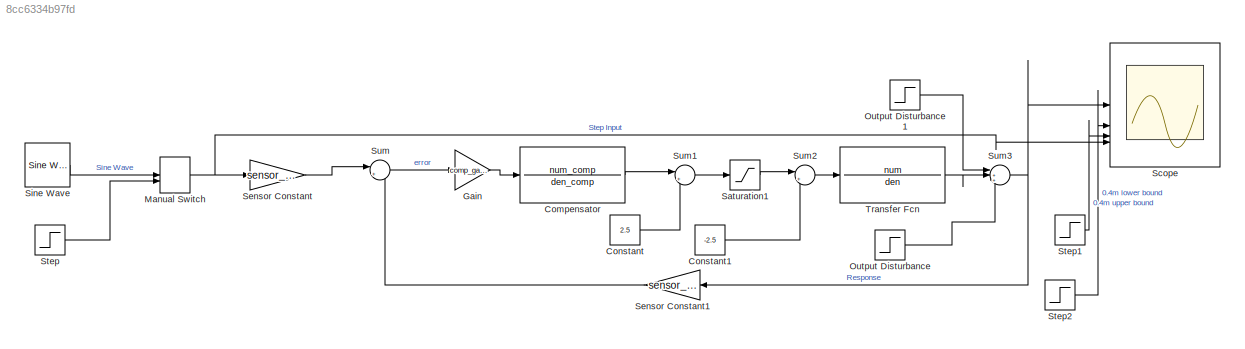
MODEL slx_8cc6334b97fd
KIND model
CONFIG AbsTol = auto
CONFIG EnableMultiTasking = on
CONFIG FixedStep = auto
CONFIG MaxStep = 0.01
CONFIG MinStep = auto
CONFIG RelTol = 1e-4
CONFIG SampleTimeConstraint = Unconstrained
CONFIG SolverName = VariableStepAuto
CONFIG StartTime = 0.0
CONFIG StopTime = 70
BLOCK [TransferFcn] Compensator
  Denominator = den_comp
  Numerator = num_comp
BLOCK [Constant] Constant
  Value = 2.5
BLOCK [Constant] Constant1
  Value = -2.5
BLOCK [Gain] Gain
  Gain = comp_gain
BLOCK [ManualSwitch] Manual Switch
  CurrentSetting = 0
BLOCK [Step] Output Disturbance
  After = 0
  Before = 1
  SampleTime = 0
  Time = 7
BLOCK [Step] Output Disturbance1
  After = 0
  Before = -1
  SampleTime = 0
  Time = 13
BLOCK [Saturate] Saturation1
  LowerLimit = 0
  UpperLimit = 5
BLOCK [Scope] Scope
  Floating = off
  NumInputPorts = 4
  ScopeSpecificationString = Simulink.scopes.TimeScopeBlockCfg('CurrentConfiguration', extmgr.ConfigurationSet(extmgr.Configuration('Core','General UI',true),extmgr.Configuration('Core','Source UI',true),extmgr.Configuration('Sources','WiredSimulink',true,'DataLoggingMaxPoints','500'),extmgr.Configuration('Visuals','Time Domain',true,'SerializedDisplays',{struct('MinYLimReal','-0.675','MaxYLimReal','0.65343','YLabelReal','','...<+2350ch>
BLOCK [Gain] Sensor Constant
  Gain = sensor_constant
BLOCK [Gain] Sensor Constant1
  Gain = sensor_constant
  NameLocation = top
BLOCK [Reference] Sine Wave  REF=dspsrcs4/Sine Wave
  LibrarySourceBlock = dsphdlsupportsrcs/Sine Wave
  SourceBlock = dspsrcs4/Sine Wave
  SourceType = Sine Wave
BLOCK [Step] Step
  After = 5
  SampleTime = 0
BLOCK [Step] Step1
  After = 5.4
  SampleTime = 0
BLOCK [Step] Step2
  After = 4.6
  SampleTime = 0
BLOCK [Sum] Sum
  Inputs = |+-
BLOCK [Sum] Sum1
  Inputs = |++
BLOCK [Sum] Sum2
  Inputs = |++
BLOCK [Sum] Sum3
  Inputs = |+++
BLOCK [TransferFcn] Transfer Fcn
  Denominator = den
  Numerator = num
LINE Compensator:1 -> Sum1:1
LINE Constant1:1 -> Sum2:2
LINE Constant:1 -> Sum1:2
LINE Gain:1 -> Compensator:1
NET Manual Switch:1 -> Scope:4, Sensor Constant:1
LINE Output Disturbance1:1 -> Sum3:1
LINE Output Disturbance:1 -> Sum3:3
LINE Saturation1:1 -> Sum2:1
LINE Sensor Constant1:1 -> Sum:2
LINE Sensor Constant:1 -> Sum:1
LINE Sine Wave:1 -> Manual Switch:1
LINE Step1:1 -> Scope:3
LINE Step2:1 -> Scope:2
LINE Step:1 -> Manual Switch:2
LINE Sum1:1 -> Saturation1:1
LINE Sum2:1 -> Transfer Fcn:1
NET Sum3:1 -> Scope:1, Sensor Constant1:1
LINE Sum:1 -> Gain:1
LINE Transfer Fcn:1 -> Sum3:2
note: NET lines group one-source signal fan-out (src -> all destinations, sorted); 1:1 wires keep LINE
